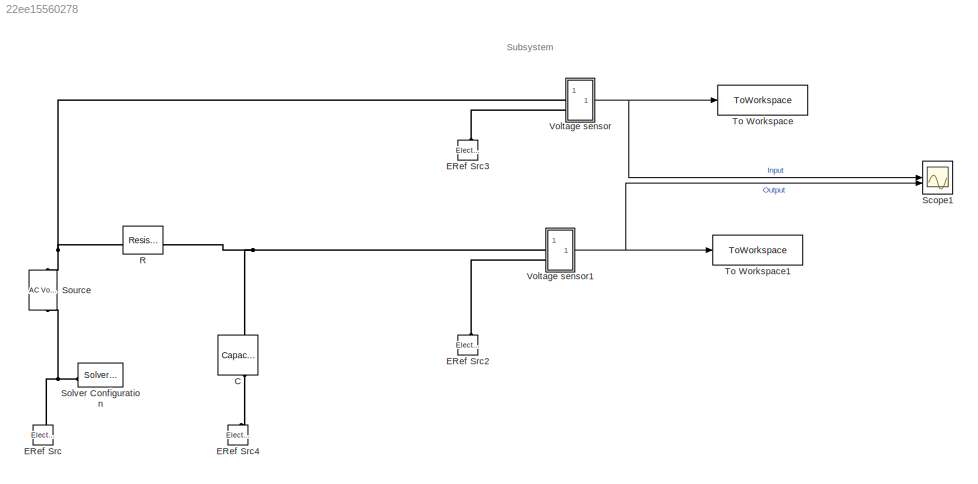
MODEL slx_22ee15560278
KIND model
CONFIG AbsTol = auto
CONFIG EnableMultiTasking = on
CONFIG FixedStep = 1e-6
CONFIG MaxStep = 3e-5
CONFIG MinStep = auto
CONFIG PreLoadFcn = %% Global model parameters\nfs = 1000; % A-to-D sampling rate\n\n%% Filter design\nf1 = 500; % Filter cut-off frequency\nn = 4;    % Filter order\nw1 = 2*pi*f1;                                                                                                                                                                                                                                                      ...<+3833ch>
CONFIG RelTol = 1e-3
CONFIG SampleTimeConstraint = Unconstrained
CONFIG SolverName = FixedStepAuto
CONFIG StartTime = 0.0
CONFIG StopTime = 0.1
BLOCK [Reference] C  REF=ee_lib/Passive/Capacitor
  NameLocation = left
  SourceBlock = ee_lib/Passive/Capacitor
  SourceType = Capacitor
BLOCK [Reference] ERef Src  REF=fl_lib/Electrical/Electrical Elements/Electrical Reference
  NameLocation = right
  SourceBlock = fl_lib/Electrical/Electrical Elements/Electrical Reference
  SourceType = Electrical Reference
BLOCK [Reference] ERef Src2  REF=fl_lib/Electrical/Electrical Elements/Electrical Reference
  NameLocation = right
  SourceBlock = fl_lib/Electrical/Electrical Elements/Electrical Reference
  SourceType = Electrical Reference
BLOCK [Reference] ERef Src3  REF=fl_lib/Electrical/Electrical Elements/Electrical Reference
  NameLocation = right
  SourceBlock = fl_lib/Electrical/Electrical Elements/Electrical Reference
  SourceType = Electrical Reference
BLOCK [Reference] ERef Src4  REF=fl_lib/Electrical/Electrical Elements/Electrical Reference
  NameLocation = right
  SourceBlock = fl_lib/Electrical/Electrical Elements/Electrical Reference
  SourceType = Electrical Reference
BLOCK [Reference] R  REF=ee_lib/Passive/Resistor
  SourceBlock = ee_lib/Passive/Resistor
  SourceType = Resistor
BLOCK [Scope] Scope1
  Floating = off
  NumInputPorts = 2
  ScopeSpecificationString = Simulink.scopes.TimeScopeBlockCfg('CurrentConfiguration', extmgr.ConfigurationSet(extmgr.Configuration('Core','General UI',true),extmgr.Configuration('Core','Source UI',true),extmgr.Configuration('Sources','WiredSimulink',true,'DataLoggingVariableName','ScopeData2','DataLoggingMaxPoints','500000','DataLoggingSaveFormat','Array','DataLoggingDecimation','1'),extmgr.Configuration('Visuals','Time Doma...<+2900ch>
BLOCK [Reference] Solver Configuration  REF=nesl_utility/Solver
Configuration
  SourceBlock = nesl_utility/Solver\nConfiguration
  SourceType = Solver\nConfiguration
BLOCK [Reference] Source  REF=fl_lib/Electrical/Electrical Sources/AC Voltage Source
  AttributesFormatString = %<amp> %<amp_unit>\n%<frequency> %<frequency_unit>
  NameLocation = left
  SourceBlock = fl_lib/Electrical/Electrical Sources/AC Voltage Source
  SourceType = AC Voltage Source
BLOCK [ToWorkspace] To Workspace
  FixptAsFi = on
  MaxDataPoints = inf
  SampleTime = -1
  SaveFormat = Timeseries
  VariableName = input
BLOCK [ToWorkspace] To Workspace1
  FixptAsFi = on
  MaxDataPoints = inf
  SampleTime = -1
  SaveFormat = Timeseries
  VariableName = output
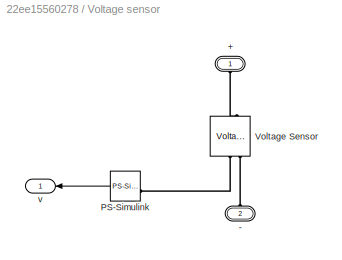
BLOCK [SubSystem] Voltage sensor
  CopyFcn = set_param(gcb,'LinkStatus','none')
BLOCK [PMIOPort] Voltage sensor/+
  NameLocation = right
  Side = Left
BLOCK [PMIOPort] Voltage sensor/-
  NameLocation = right
  Port = 2
  Side = Left
BLOCK [Reference] Voltage sensor/PS-Simulink  REF=nesl_utility/PS-Simulink
Converter
  SourceBlock = nesl_utility/PS-Simulink\nConverter
  SourceType = PS-Simulink\nConverter
BLOCK [Reference] Voltage sensor/Voltage Sensor  REF=fl_lib/Electrical/Electrical Sensors/Voltage Sensor
  NameLocation = right
  SourceBlock = fl_lib/Electrical/Electrical Sensors/Voltage Sensor
  SourceType = Voltage Sensor
BLOCK [Outport] Voltage sensor/v
  VectorParamsAs1DForOutWhenUnconnected = off
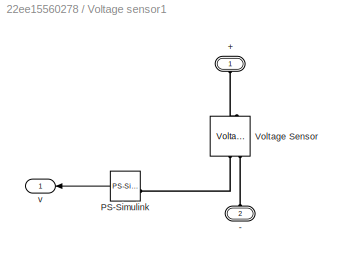
BLOCK [SubSystem] Voltage sensor1
  CopyFcn = set_param(gcb,'LinkStatus','none')
BLOCK [PMIOPort] Voltage sensor1/+
  NameLocation = right
  Side = Left
BLOCK [PMIOPort] Voltage sensor1/-
  NameLocation = right
  Port = 2
  Side = Left
BLOCK [Reference] Voltage sensor1/PS-Simulink  REF=nesl_utility/PS-Simulink
Converter
  SourceBlock = nesl_utility/PS-Simulink\nConverter
  SourceType = PS-Simulink\nConverter
BLOCK [Reference] Voltage sensor1/Voltage Sensor  REF=fl_lib/Electrical/Electrical Sensors/Voltage Sensor
  NameLocation = right
  SourceBlock = fl_lib/Electrical/Electrical Sensors/Voltage Sensor
  SourceType = Voltage Sensor
BLOCK [Outport] Voltage sensor1/v
  VectorParamsAs1DForOutWhenUnconnected = off
ANNOTATION (root): Subsystem
LINE Voltage sensor/PS-Simulink:1 -> Voltage sensor/v:1
LINE Voltage sensor1/PS-Simulink:1 -> Voltage sensor1/v:1
NET Voltage sensor1:1 -> Scope1:2, To Workspace1:1
NET Voltage sensor:1 -> Scope1:1, To Workspace:1
PNET net1: C:LConn1 -- R:RConn1 -- Voltage sensor1:LConn1
PLINE C:RConn1 -- ERef Src4:LConn1
PLINE ERef Src2:LConn1 -- Voltage sensor1:LConn2
PLINE ERef Src3:LConn1 -- Voltage sensor:LConn2
PNET net2: ERef Src:LConn1 -- Solver Configuration:RConn1 -- Source:RConn1
PNET net3: R:LConn1 -- Source:LConn1 -- Voltage sensor:LConn1
PLINE Voltage sensor/+:RConn1 -- Voltage sensor/Voltage Sensor:LConn1
PLINE Voltage sensor/-:RConn1 -- Voltage sensor/Voltage Sensor:RConn2
PLINE Voltage sensor/PS-Simulink:LConn1 -- Voltage sensor/Voltage Sensor:RConn1
PLINE Voltage sensor1/+:RConn1 -- Voltage sensor1/Voltage Sensor:LConn1
PLINE Voltage sensor1/-:RConn1 -- Voltage sensor1/Voltage Sensor:RConn2
PLINE Voltage sensor1/PS-Simulink:LConn1 -- Voltage sensor1/Voltage Sensor:RConn1
note: NET lines group one-source signal fan-out (src -> all destinations, sorted); 1:1 wires keep LINE; PNET lines group multi-terminal physical nets as a canonical sorted terminal list (undirected conserving connections); 2-terminal nets keep the pairwise PLINE form
